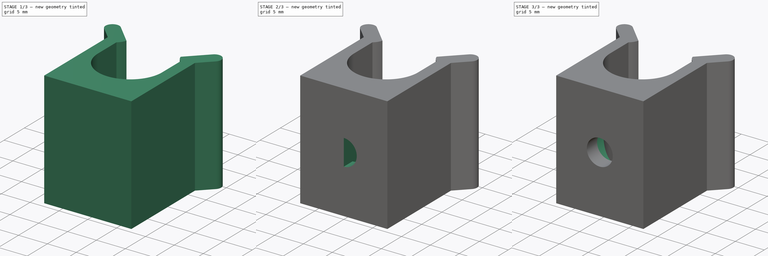
[diagram: build sequence overview — one tinted view per stage of 3, left to right]
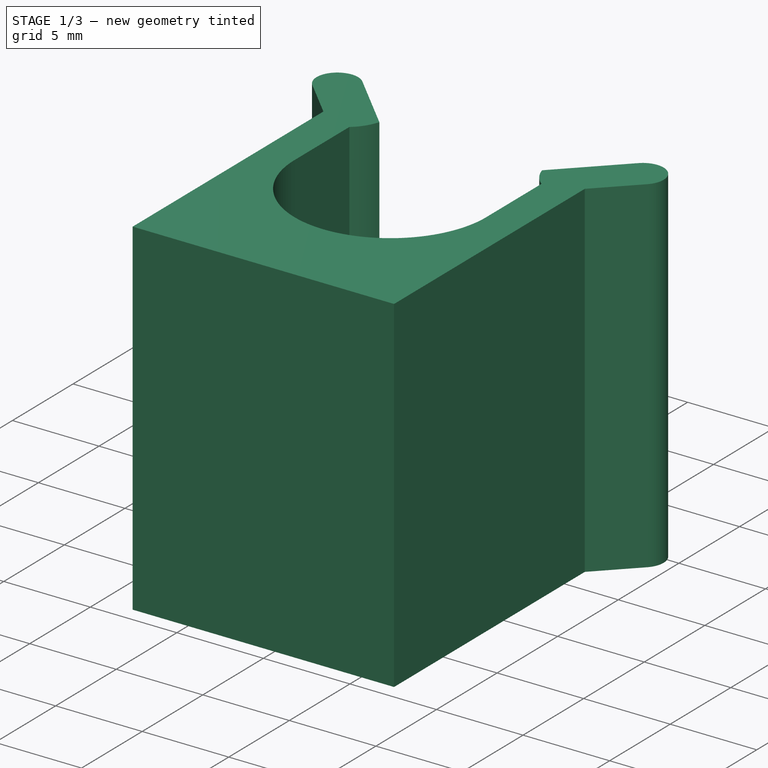
[diagram: stage 1 of 3 — iso view after this stage's code; geometry added in this stage tinted green]
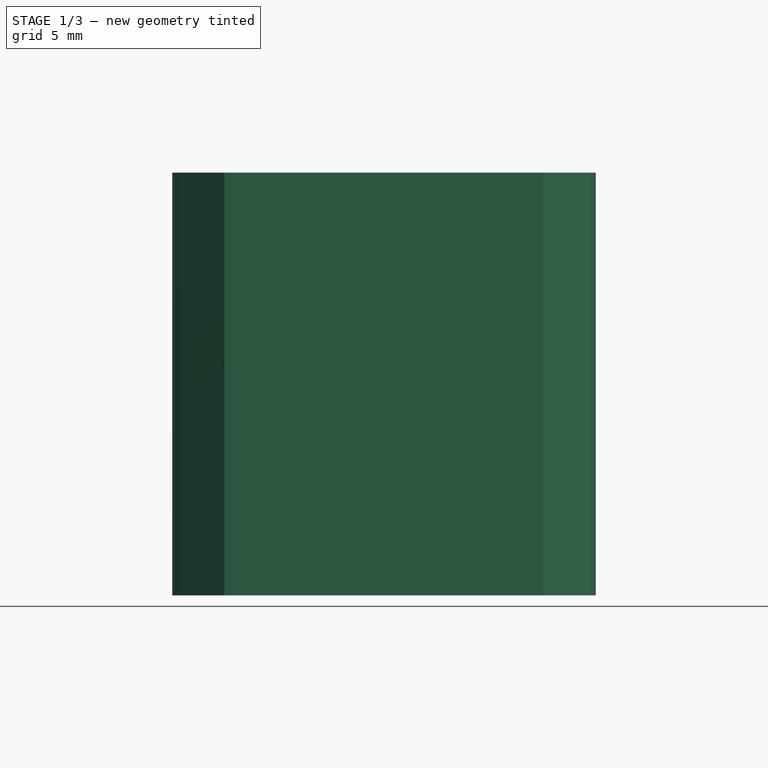
[diagram: stage 1 of 3 — front view after this stage's code; geometry added in this stage tinted green]
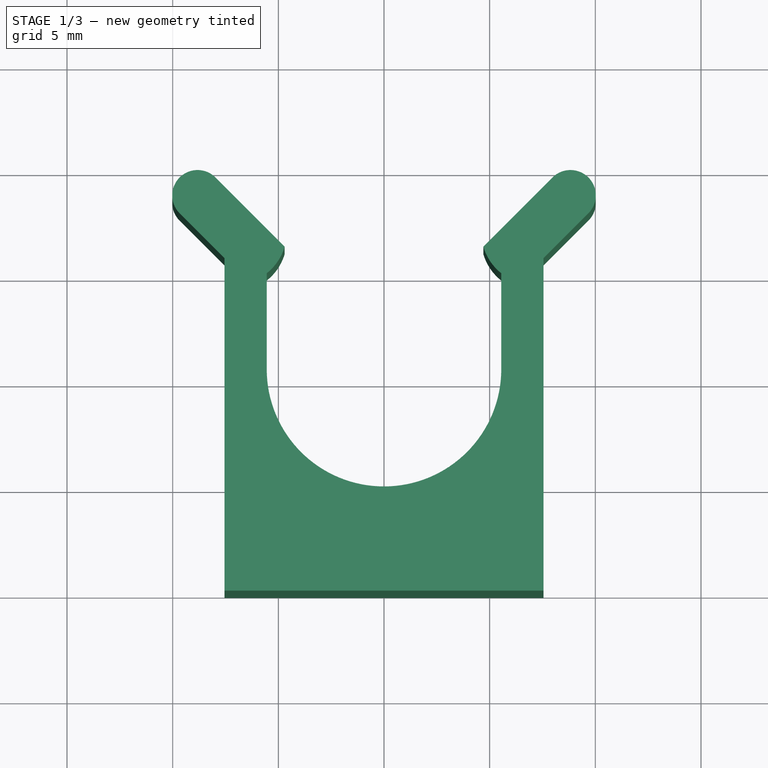
[diagram: stage 1 of 3 — top view after this stage's code; geometry added in this stage tinted green]
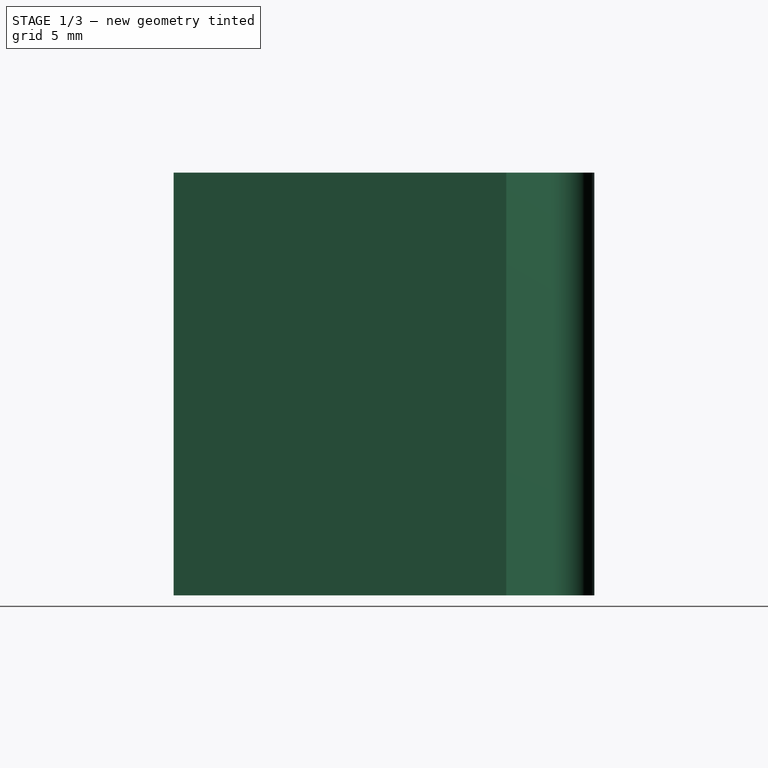
[diagram: stage 1 of 3 — right view after this stage's code; geometry added in this stage tinted green]
FCSTD DOCUMENT  (FreeCAD 1.0RUnknown)
Label: window-lock-retainer-ask
License: All rights reserved
LicenseURL: https://en.wikipedia.org/wiki/All_rights_reserved
objects: Sketcher::SketchObject×4, PartDesign::Pad×2, PartDesign::Mirrored×2, PartDesign::Hole×2, PartDesign::Body×2, Image::ImagePlane×1
note: 26 computed .brp shape members not serialized (recipe doc carries the construction recipe); baked Part::Feature solids carry a one-line shape summary decoded from their .brp

FEATURE [PartDesign::Body] Body  label="Body0, hole offset from XY-plane."
  AllowCompound = false
  Group = -> [Sketch,Pad,Mirrored,Sketch001,Hole]
  Origin = -> Origin
  Tip = -> Hole
FEATURE [Sketcher::SketchObject] Sketch002
  ArcFitTolerance = 1e-06
  AttachmentSupport = -> [XY_Plane001]
  FullyConstrained = true
  MakeInternals = false
  MapMode = 5
  sketch-geometry (10):
    g0: LineSegment StartX=0 StartY=0 StartZ=0 EndX=-7.55 EndY=0 EndZ=0
    g1: LineSegment StartX=-7.55 StartY=0 StartZ=0 EndX=-7.55 EndY=15.7359 EndZ=0
    g2: LineSegment StartX=-7.55 StartY=15.7359 StartZ=0 EndX=-9.67132 EndY=17.8572 EndZ=0
    g3: LineSegment StartX=-7.97426 StartY=19.5543 StartZ=0 EndX=-4.7 EndY=16.28 EndZ=0
    g4: LineSegment StartX=-5.55 StartY=10.48 StartZ=0 EndX=-5.55 EndY=15.0202 EndZ=0
    g5: ArcOfCircle CenterX=0 CenterY=10.48 CenterZ=0 NormalX=0 NormalY=0 NormalZ=1 AngleXU=0 Radius=5.55 StartAngle=3.14159 EndAngle=4.71239
    g6: LineSegment StartX=0 StartY=0 StartZ=0 EndX=-1e-15 EndY=4.93 EndZ=0
    g7: ArcOfCircle CenterX=-7.09933 CenterY=16.9823 CenterZ=0 NormalX=0 NormalY=0 NormalZ=1 AngleXU=0 Radius=2.5 StartAngle=5.38079 EndAngle=5.99844
    g8: ArcOfCircle CenterX=-8.82279 CenterY=18.7057 CenterZ=0 NormalX=0 NormalY=0 NormalZ=1 AngleXU=0 Radius=1.2 StartAngle=0.785398 EndAngle=3.92699
    g9: LineSegment [constr] StartX=-7.09933 StartY=16.9823 StartZ=0 EndX=-8.82279 EndY=18.7057 EndZ=0
  constraints (28):
    c: Coincident(g-1,g0)
    c: PointOnObject(g0,g-1)
    c: Coincident(g0,g1)
    c: Vertical(g1)
    c: Coincident(g1,g2)
    c: Vertical(g4)
    c: PointOnObject(g5,g-2)
    c: Coincident(g6,g0)
    c: Coincident(g6,g5)
    c: Coincident(g7,g4)
    c: Coincident(g7,g3)
    c: DistanceY(g6,g6) = 4.93
    c: Radius(g5) = 5.55
    c: Tangent(g5,g4) = 1.5708
    c: Distance(g4,g1) = 2
    c: PointOnObject(g5,g-2)
    c: Radius(g8) = 1.2
    c: Tangent(g8,g2) = 1.5708
    c: Tangent(g8,g3) = 1.5708
    c: Parallel(g3,g2)
    c: Angle(g-2,g3) = 0.785398
    c: Distance(g2,g2) = 3
    c: Radius(g7) = 2.5
    c: DistanceY(g5,g3) = 5.8
    c: Coincident(g9,g7)
    c: Coincident(g9,g8)
    c: Parallel(g3,g9)
    c: DistanceX(g3,g5) = 4.7
FEATURE [PartDesign::Pad] Pad001
  Direction = (0,0,1)
  Length = 20
  Length2 = 10
  Midplane = true
  Profile = -> Sketch002
  ReferenceAxis = -> Sketch002 [N_Axis]
  Refine = true
  Suppressed = false
  Type = 0
FEATURE [PartDesign::Mirrored] Mirrored001
  BaseFeature = -> Pad001
  MirrorPlane = -> Sketch002 [V_Axis]
  Originals = -> [Pad001]
  Refine = true
  Suppressed = false
  TransformMode = 0
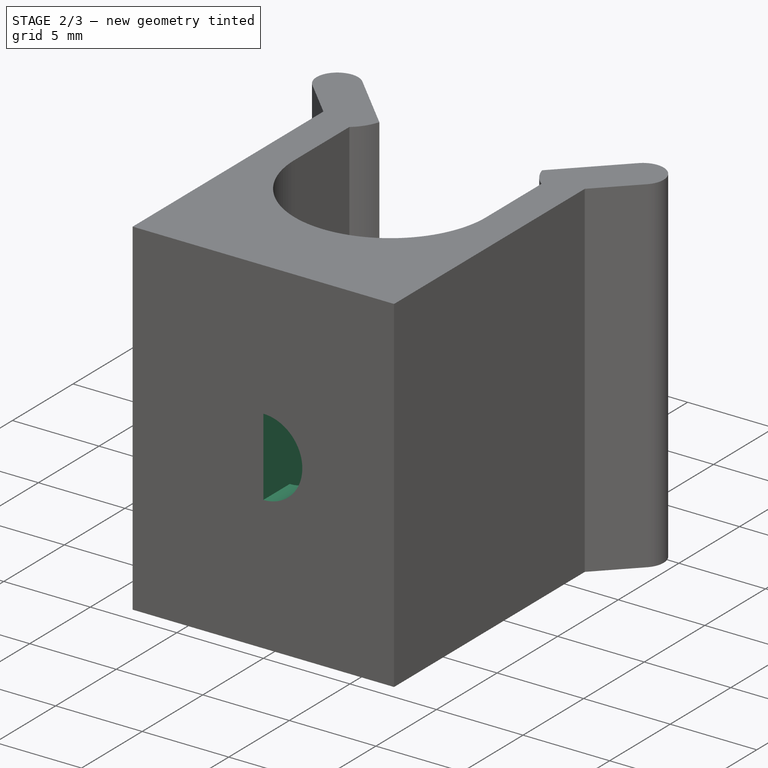
[diagram: stage 2 of 3 — iso view after this stage's code; geometry added in this stage tinted green]
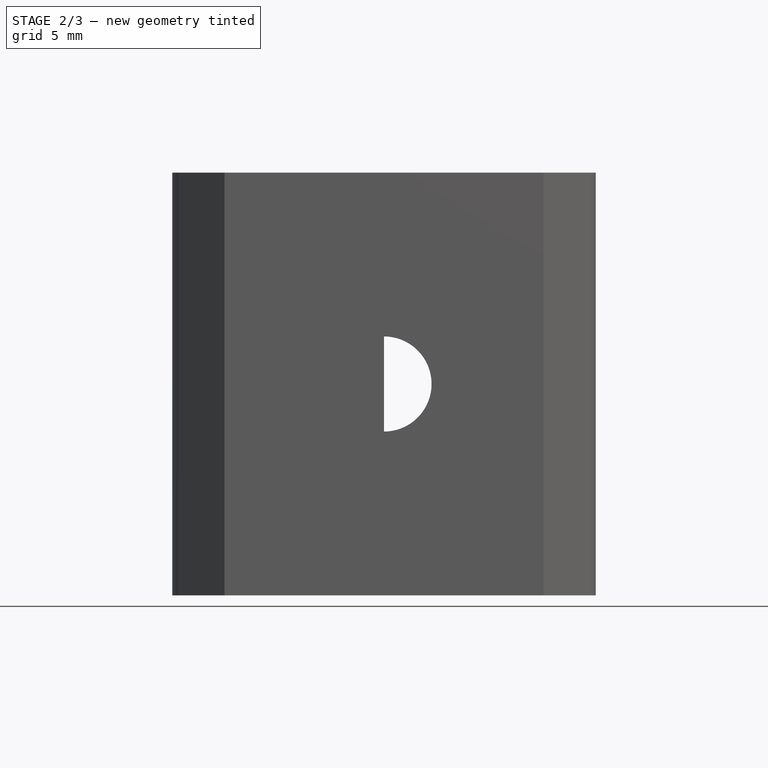
[diagram: stage 2 of 3 — front view after this stage's code; geometry added in this stage tinted green]
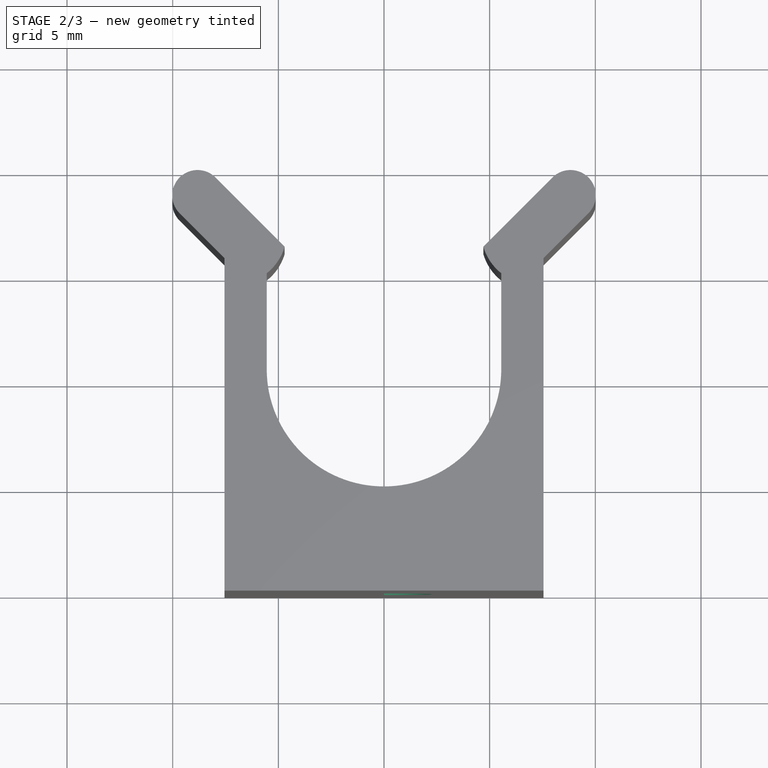
[diagram: stage 2 of 3 — top view after this stage's code; geometry added in this stage tinted green]
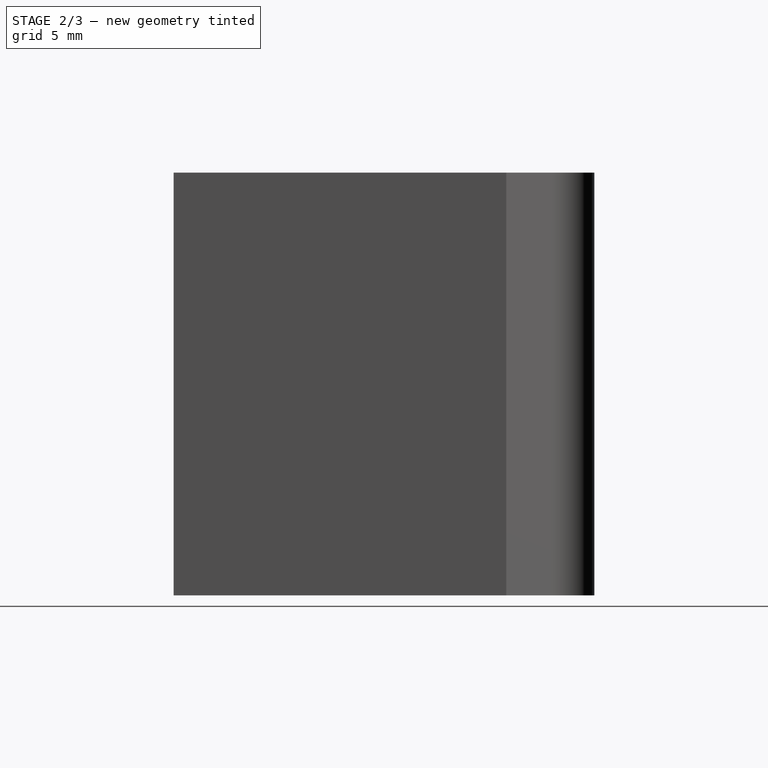
[diagram: stage 2 of 3 — right view after this stage's code; geometry added in this stage tinted green]
FEATURE [Sketcher::SketchObject] Sketch
  ArcFitTolerance = 1e-06
  AttachmentSupport = -> [XY_Plane]
  FullyConstrained = true
  MakeInternals = false
  MapMode = 5
  sketch-geometry (10):
    g0: LineSegment StartX=0 StartY=0 StartZ=0 EndX=-7.55 EndY=0 EndZ=0
    g1: LineSegment StartX=-7.55 StartY=0 StartZ=0 EndX=-7.55 EndY=15.7359 EndZ=0
    g2: LineSegment StartX=-7.55 StartY=15.7359 StartZ=0 EndX=-9.67132 EndY=17.8572 EndZ=0
    g3: LineSegment StartX=-7.97426 StartY=19.5543 StartZ=0 EndX=-4.7 EndY=16.28 EndZ=0
    g4: LineSegment StartX=-5.55 StartY=10.48 StartZ=0 EndX=-5.55 EndY=15.0202 EndZ=0
    g5: ArcOfCircle CenterX=0 CenterY=10.48 CenterZ=0 NormalX=0 NormalY=0 NormalZ=1 AngleXU=0 Radius=5.55 StartAngle=3.14159 EndAngle=4.71239
    g6: LineSegment StartX=0 StartY=0 StartZ=0 EndX=-1e-15 EndY=4.93 EndZ=0
    g7: ArcOfCircle CenterX=-7.09933 CenterY=16.9823 CenterZ=0 NormalX=0 NormalY=0 NormalZ=1 AngleXU=0 Radius=2.5 StartAngle=5.38079 EndAngle=5.99844
    g8: ArcOfCircle CenterX=-8.82279 CenterY=18.7057 CenterZ=0 NormalX=0 NormalY=0 NormalZ=1 AngleXU=0 Radius=1.2 StartAngle=0.785398 EndAngle=3.92699
    g9: LineSegment [constr] StartX=-7.09933 StartY=16.9823 StartZ=0 EndX=-8.82279 EndY=18.7057 EndZ=0
  constraints (28):
    c: Coincident(g-1,g0)
    c: PointOnObject(g0,g-1)
    c: Coincident(g0,g1)
    c: Vertical(g1)
    c: Coincident(g1,g2)
    c: Vertical(g4)
    c: PointOnObject(g5,g-2)
    c: Coincident(g6,g0)
    c: Coincident(g6,g5)
    c: Coincident(g7,g4)
    c: Coincident(g7,g3)
    c: DistanceY(g6,g6) = 4.93
    c: Radius(g5) = 5.55
    c: Tangent(g5,g4) = 1.5708
    c: Distance(g4,g1) = 2
    c: PointOnObject(g5,g-2)
    c: Radius(g8) = 1.2
    c: Tangent(g8,g2) = 1.5708
    c: Tangent(g8,g3) = 1.5708
    c: Parallel(g3,g2)
    c: Angle(g-2,g3) = 0.785398
    c: Distance(g2,g2) = 3
    c: Radius(g7) = 2.5
    c: DistanceY(g5,g3) = 5.8
    c: Coincident(g9,g7)
    c: Coincident(g9,g8)
    c: Parallel(g3,g9)
    c: DistanceX(g3,g5) = 4.7
FEATURE [PartDesign::Pad] Pad
  Direction = (0,0,1)
  Length = 20
  Length2 = 10
  Midplane = true
  Profile = -> Sketch
  ReferenceAxis = -> Sketch [N_Axis]
  Refine = true
  Suppressed = false
  Type = 0
FEATURE [Sketcher::SketchObject] Sketch003
  ArcFitTolerance = 1e-06
  AttachmentOffset = pos=(0,0,-4) rot=(0,0,1;0rad)
  AttachmentSupport = -> [Sketch002]
  FullyConstrained = true
  MakeInternals = false
  MapMode = 7
  Placement = pos=(-1e-15,8.93,-9e-16) rot=(1,0,0;1.5708rad)
  sketch-geometry (1):
    g0: Circle CenterX=0 CenterY=0 CenterZ=0 NormalX=0 NormalY=0 NormalZ=1 AngleXU=0 Radius=2.2
  constraints (2):
    c: Diameter(g0) = 4.4
    c: Coincident(g0,g-1)
FEATURE [PartDesign::Hole] Hole001
  BaseFeature = -> Mirrored001
  CustomThreadClearance = 0
  Depth = 69.918
  DepthType = 1
  Diameter = 4.5
  DrillForDepth = false
  DrillPoint = 1
  DrillPointAngle = 118
  HoleCutCountersinkAngle = 90
  HoleCutCustomValues = false
  HoleCutDepth = 4
  HoleCutDiameter = 10
  HoleCutType = 3
  ModelThread = false
  Profile = -> Sketch003
  Refine = true
  Reversed = true
  Suppressed = false
  Tapered = false
  TaperedAngle = 90
  ThreadClass = 0
  ThreadDepth = 69.918
  ThreadDepthType = 0
  ThreadDirection = 0
  ThreadFit = 0
  ThreadSize = 0
  ThreadType = 0
  Threaded = false
  UseCustomThreadClearance = false
FEATURE [PartDesign::Body] Body001  label="Body1, hole NormalToEdge to the line on Z-axis + offset."
  AllowCompound = false
  Group = -> [Sketch002,Pad001,Mirrored001,Sketch003,Hole001]
  Origin = -> Origin001
  Tip = -> Hole001
FEATURE [Image::ImagePlane] windows_lock_retainer  label="windows-lock-retainer"
  Placement = pos=(-0.790419,12.0156,0) rot=(0,0,-1;0.017453rad)
  XSize = 29.1854
  YSize = 51.8851
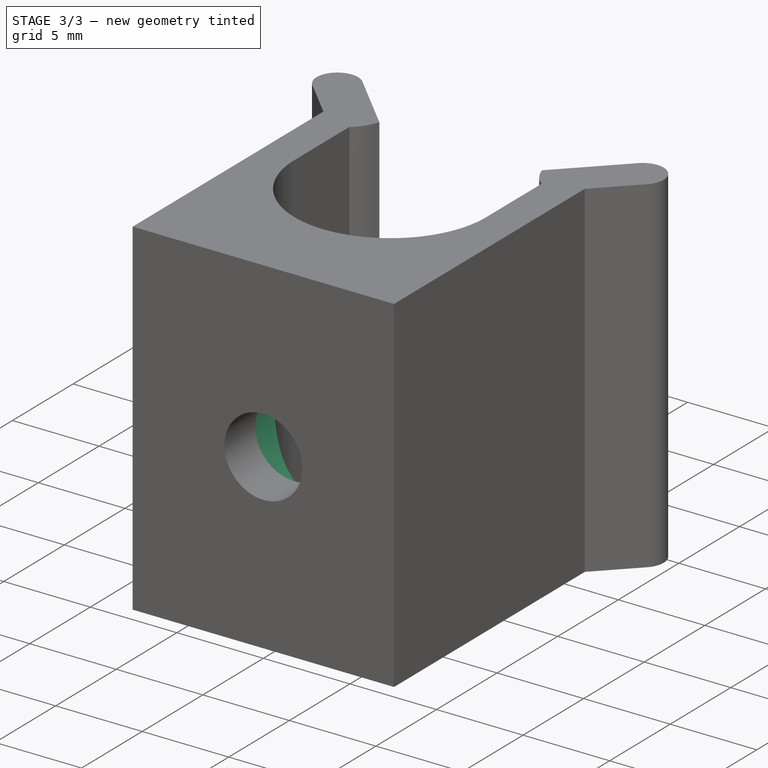
[diagram: stage 3 of 3 — iso view after this stage's code; geometry added in this stage tinted green]
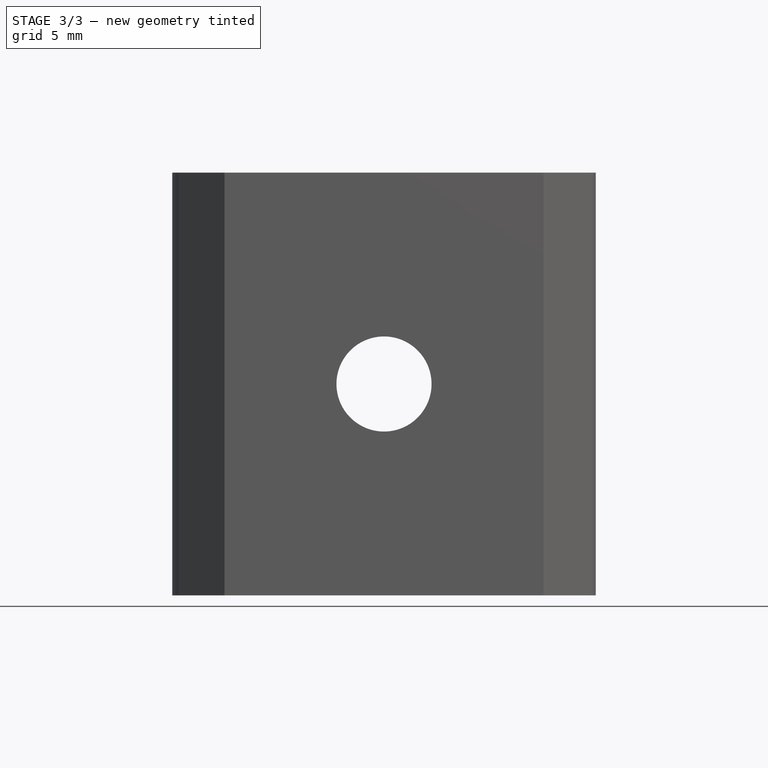
[diagram: stage 3 of 3 — front view after this stage's code; geometry added in this stage tinted green]
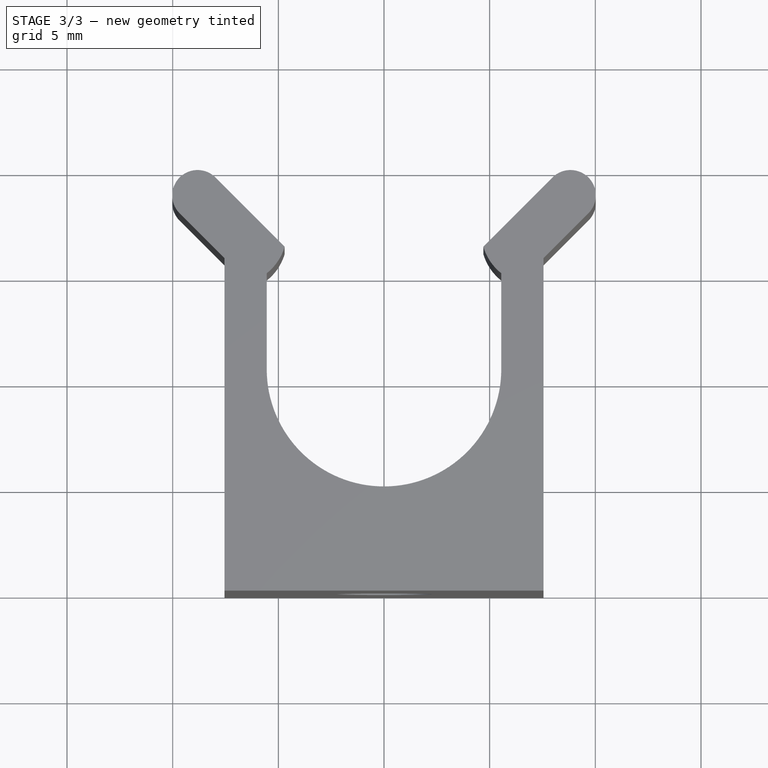
[diagram: stage 3 of 3 — top view after this stage's code; geometry added in this stage tinted green]
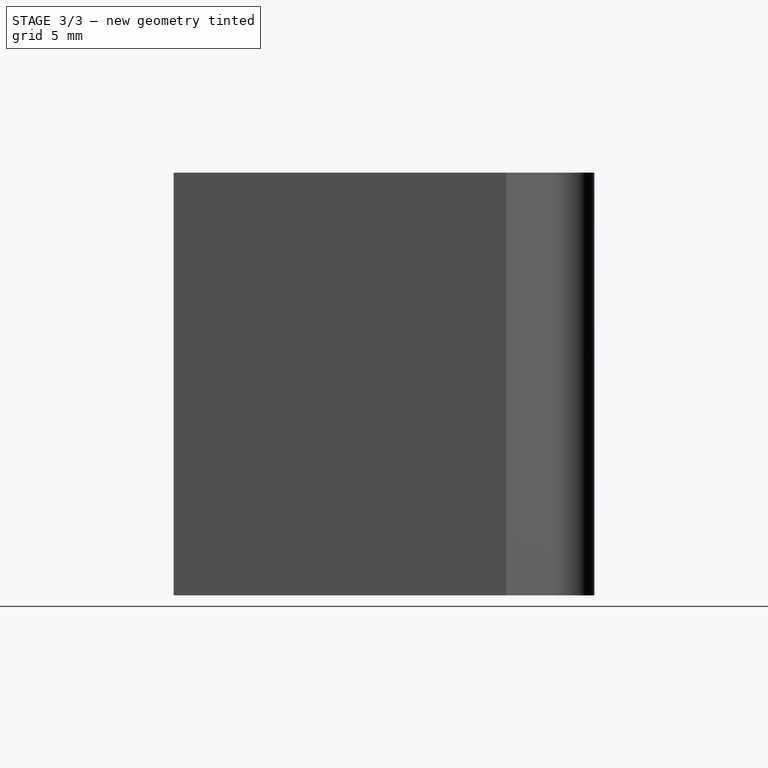
[diagram: stage 3 of 3 — right view after this stage's code; geometry added in this stage tinted green]
FEATURE [PartDesign::Mirrored] Mirrored
  BaseFeature = -> Pad
  MirrorPlane = -> Sketch [V_Axis]
  Originals = -> [Pad]
  Refine = true
  Suppressed = false
  TransformMode = 0
FEATURE [Sketcher::SketchObject] Sketch001
  ArcFitTolerance = 1e-06
  AttachmentOffset = pos=(0,0,-7) rot=(0,0,1;0rad)
  AttachmentSupport = -> [XZ_Plane]
  FullyConstrained = true
  MakeInternals = false
  MapMode = 5
  Placement = pos=(0,7,-1.6e-15) rot=(1,0,0;1.5708rad)
  sketch-geometry (1):
    g0: Circle CenterX=0 CenterY=0 CenterZ=0 NormalX=0 NormalY=0 NormalZ=1 AngleXU=0 Radius=2.2
  constraints (2):
    c: Diameter(g0) = 4.4
    c: Coincident(g0,g-1)
FEATURE [PartDesign::Hole] Hole
  BaseFeature = -> Mirrored
  CustomThreadClearance = 0
  Depth = 69.918
  DepthType = 1
  Diameter = 4.5
  DrillForDepth = false
  DrillPoint = 1
  DrillPointAngle = 118
  HoleCutCountersinkAngle = 90
  HoleCutCustomValues = false
  HoleCutDepth = 2.5
  HoleCutDiameter = 8.4
  HoleCutType = 3
  ModelThread = false
  Profile = -> Sketch001
  Refine = true
  Reversed = true
  Suppressed = false
  Tapered = false
  TaperedAngle = 90
  ThreadClass = 0
  ThreadDepth = 69.918
  ThreadDepthType = 0
  ThreadDirection = 0
  ThreadFit = 0
  ThreadSize = 0
  ThreadType = 0
  Threaded = false
  UseCustomThreadClearance = false
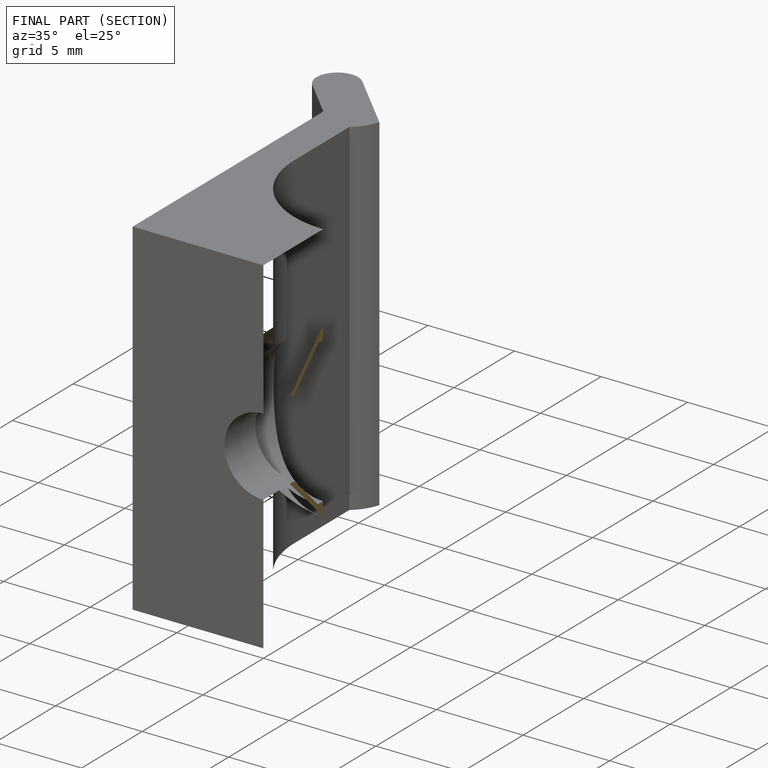
[diagram: finished part — half-section view (interior)]
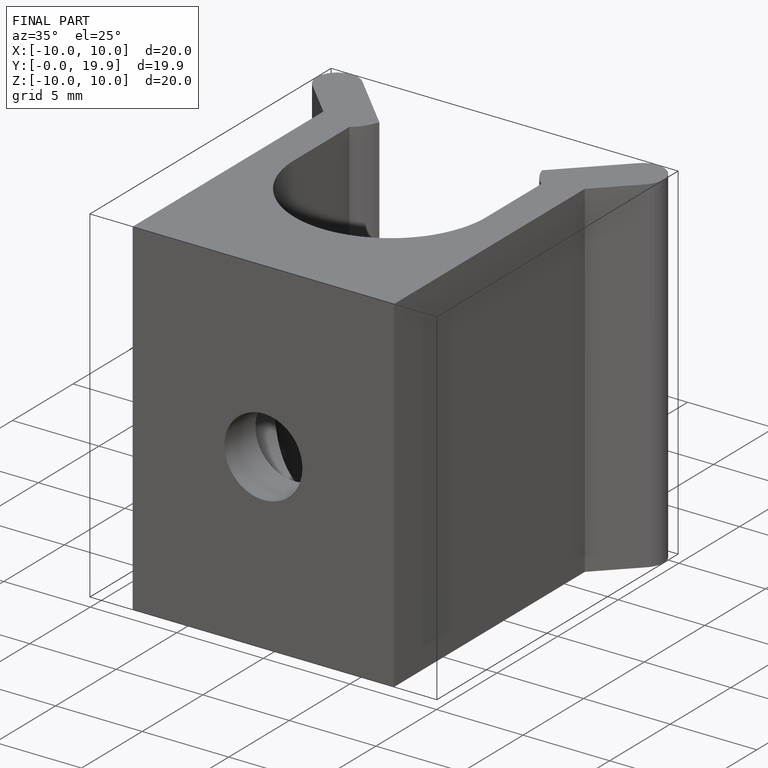
[diagram: finished part — iso view with bounding-box wireframe]
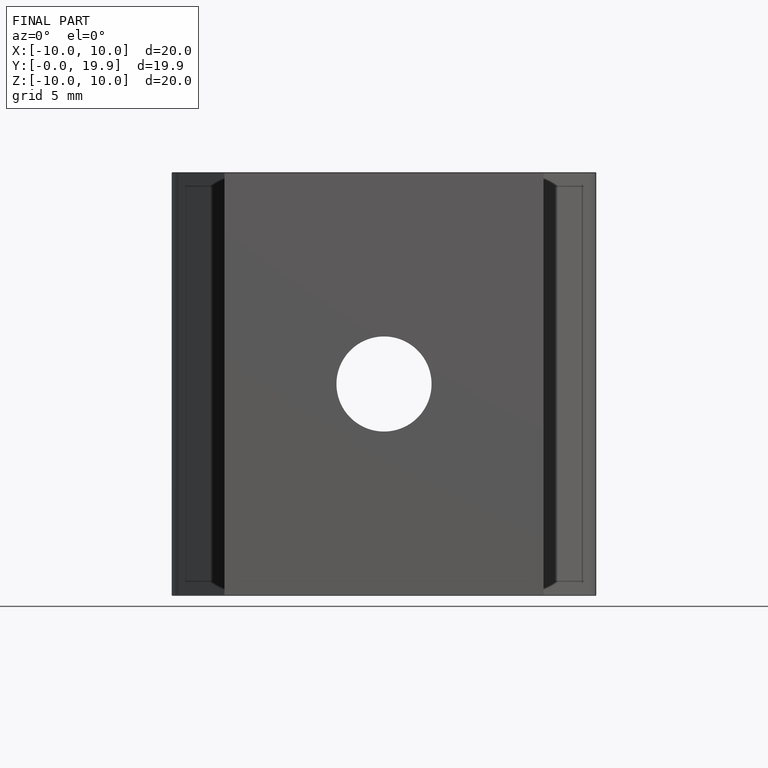
[diagram: finished part — front view with bounding-box wireframe]
